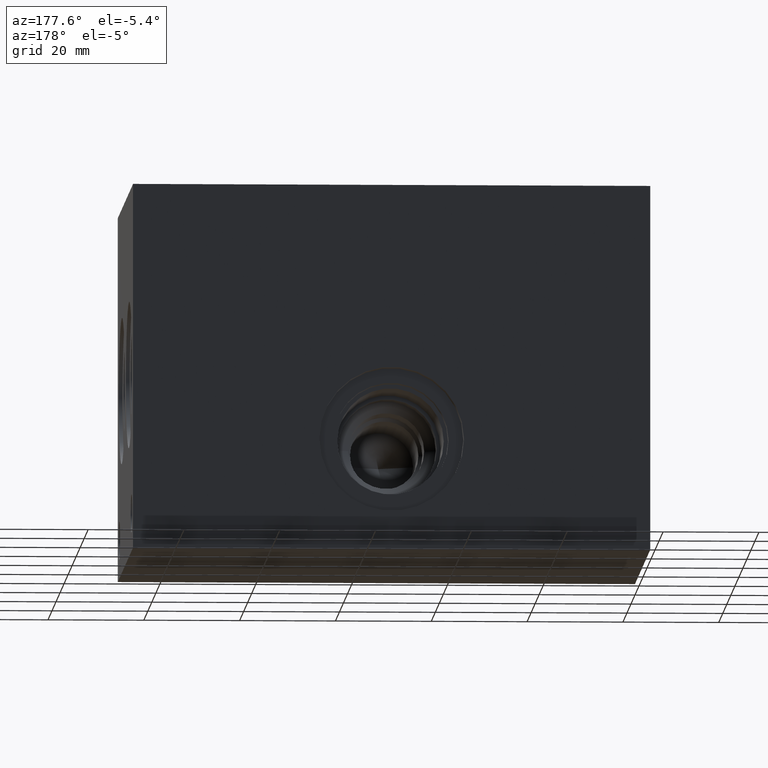
[diagram: clean part render]
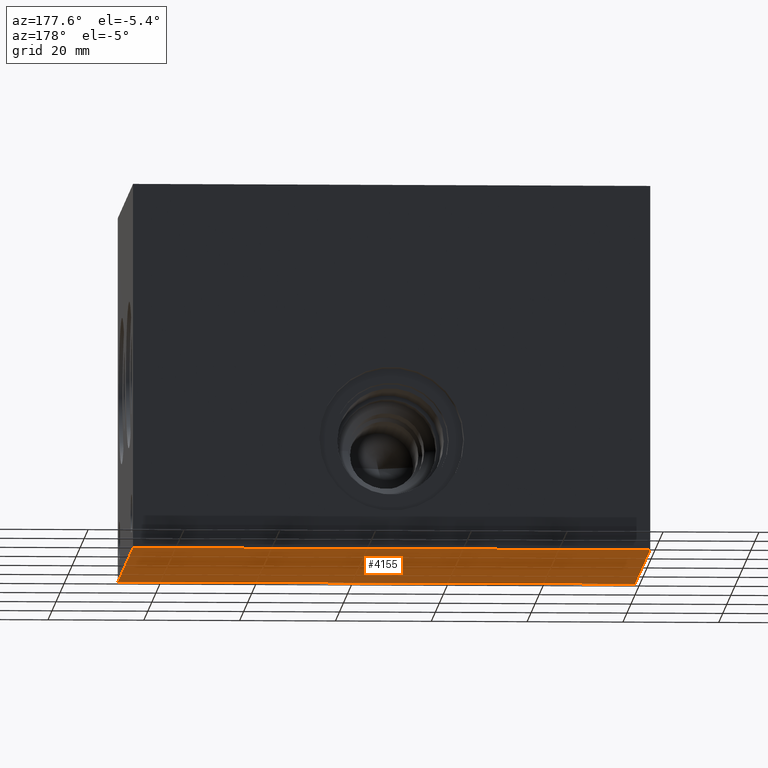
[diagram: same view with one face highlighted and labeled with its STEP entity id]
A machine part, auxiliary view. The second image highlights one B-rep face of the part: STEP entity #4155.
In plain terms, the highlighted planar face has unit normal (0, 0, -1).
Its self-contained STEP definition (entity closure, byte-faithful):
#2536=CARTESIAN_POINT('',(0.0,0.0,0.0));
#2537=VERTEX_POINT('',#2536);
#2544=CARTESIAN_POINT('',(4.249999999999999,0.0,0.0));
#2545=VERTEX_POINT('',#2544);
#2546=CARTESIAN_POINT('',(0.0,0.0,0.0));
#2547=DIRECTION('',(1.0,0.0,0.0));
#2548=VECTOR('',#2547,4.249999999999999);
#2549=LINE('',#2546,#2548);
#2550=EDGE_CURVE('',#2537,#2545,#2549,.T.);
#3183=CARTESIAN_POINT('',(0.0,3.0,0.0));
#3184=VERTEX_POINT('',#3183);
#3191=CARTESIAN_POINT('',(0.0,3.0,0.0));
#3192=DIRECTION('',(0.0,-1.0,0.0));
#3193=VECTOR('',#3192,3.0);
#3194=LINE('',#3191,#3193);
#3195=EDGE_CURVE('',#3184,#2537,#3194,.T.);
#3824=CARTESIAN_POINT('',(4.249999999999999,3.0,0.0));
#3825=VERTEX_POINT('',#3824);
#3826=CARTESIAN_POINT('',(4.249999999999999,0.0,0.0));
#3827=DIRECTION('',(0.0,1.0,0.0));
#3828=VECTOR('',#3827,3.0);
#3829=LINE('',#3826,#3828);
#3830=EDGE_CURVE('',#2545,#3825,#3829,.T.);
#4131=CARTESIAN_POINT('',(4.249999999999999,3.0,0.0));
#4132=DIRECTION('',(-1.0,0.0,0.0));
#4133=VECTOR('',#4132,4.249999999999999);
#4134=LINE('',#4131,#4133);
#4135=EDGE_CURVE('',#3825,#3184,#4134,.T.);
#4144=CARTESIAN_POINT('',(0.0,3.0,0.0));
#4145=DIRECTION('',(0.0,0.0,-1.0));
#4146=DIRECTION('',(-1.0,0.0,0.0));
#4147=AXIS2_PLACEMENT_3D('',#4144,#4145,#4146);
#4148=PLANE('',#4147);
#4149=ORIENTED_EDGE('',*,*,#2550,.F.);
#4150=ORIENTED_EDGE('',*,*,#3195,.F.);
#4151=ORIENTED_EDGE('',*,*,#4135,.F.);
#4152=ORIENTED_EDGE('',*,*,#3830,.F.);
#4153=EDGE_LOOP('',(#4149,#4150,#4151,#4152));
#4154=FACE_OUTER_BOUND('',#4153,.T.);
#4155=ADVANCED_FACE('',(#4154),#4148,.T.);